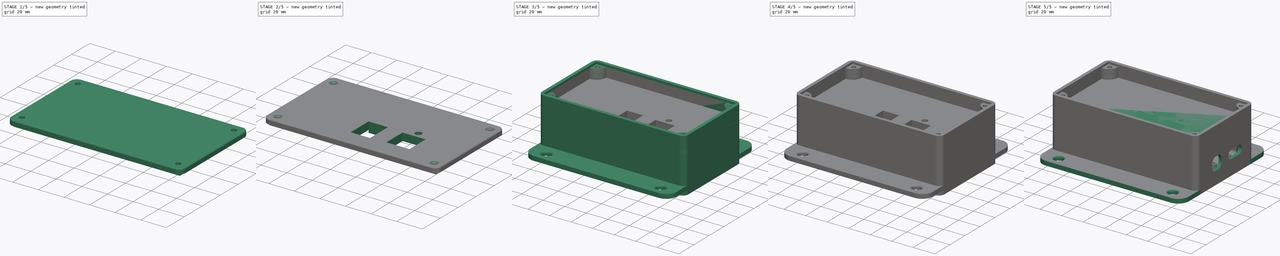
[diagram: build sequence overview — one tinted view per stage of 5, left to right]
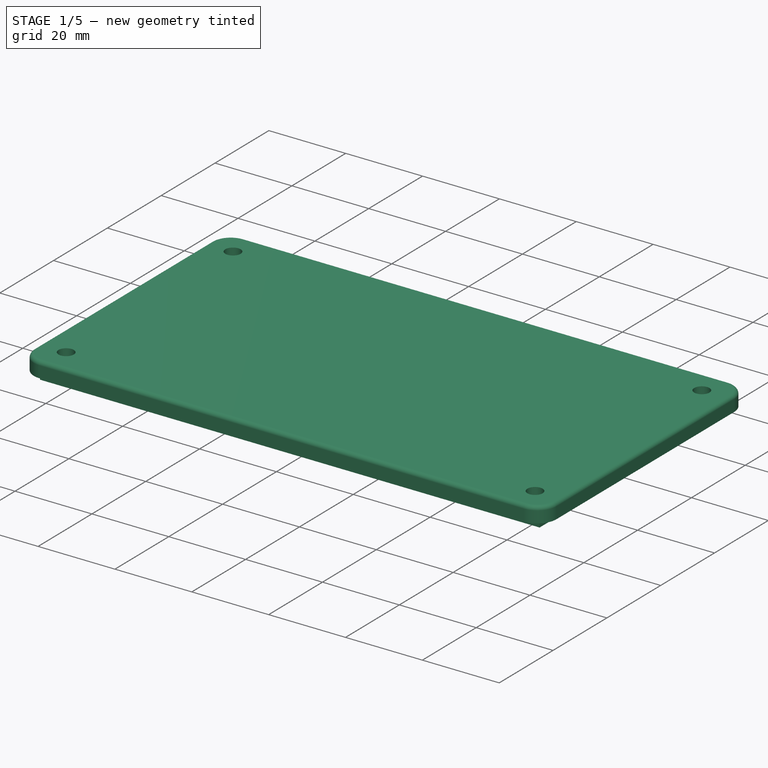
[diagram: stage 1 of 5 — iso view after this stage's code; geometry added in this stage tinted green]
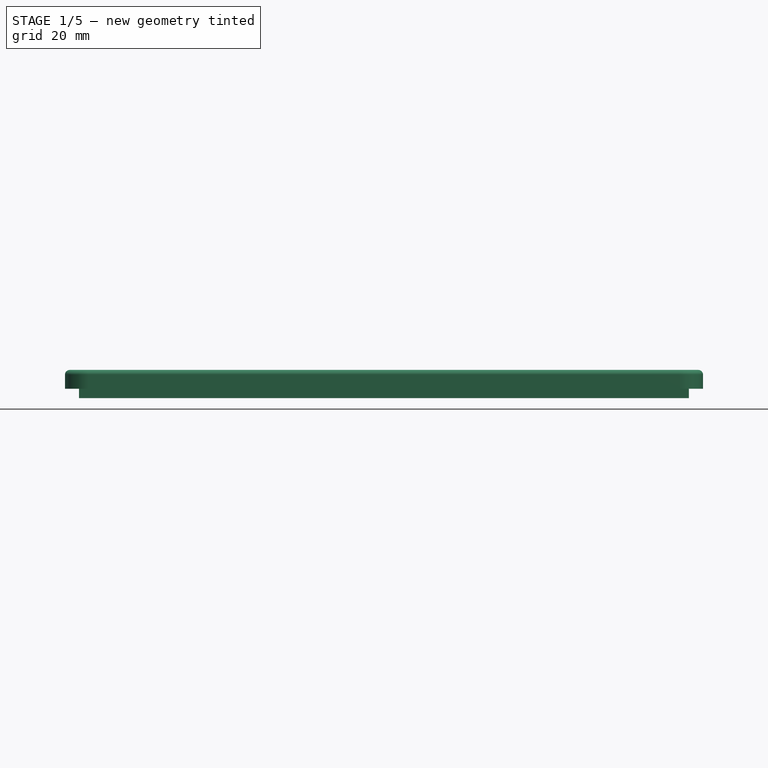
[diagram: stage 1 of 5 — front view after this stage's code; geometry added in this stage tinted green]
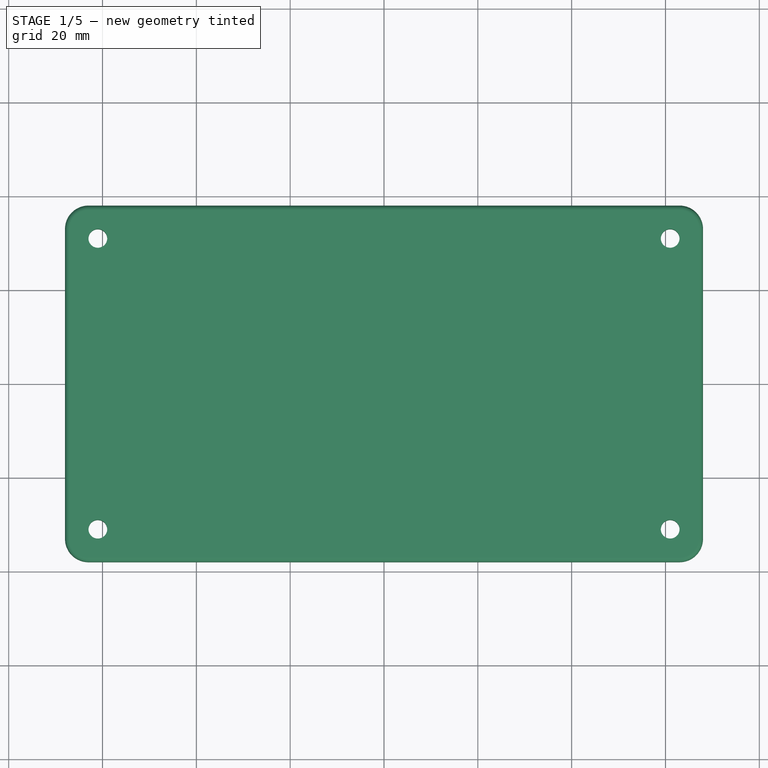
[diagram: stage 1 of 5 — top view after this stage's code; geometry added in this stage tinted green]
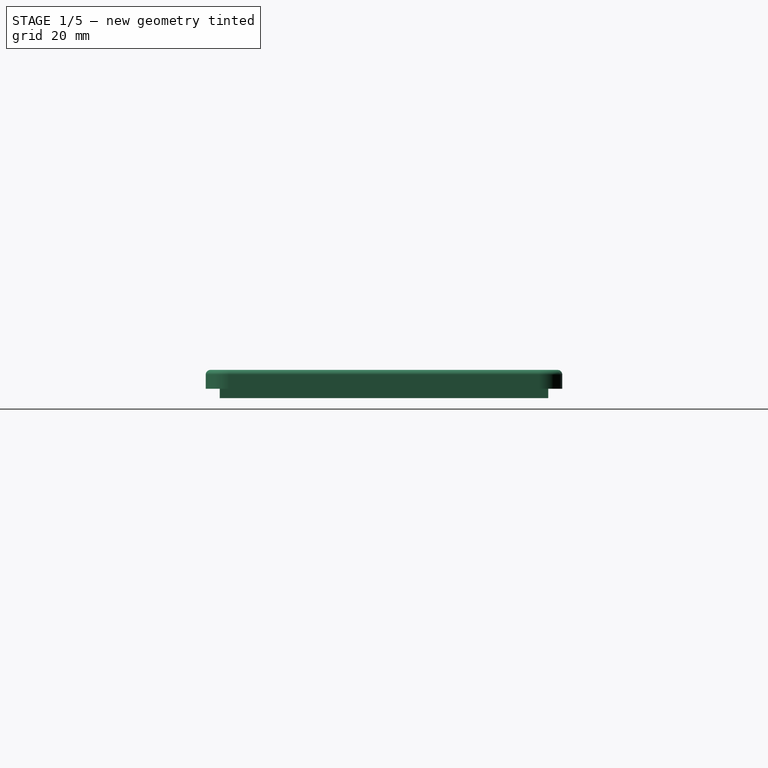
[diagram: stage 1 of 5 — right view after this stage's code; geometry added in this stage tinted green]
FCSTD DOCUMENT  (FreeCAD 0.19R24291 (Git))
Label: TempHumidBox5
License: All rights reserved
LicenseURL: http://en.wikipedia.org/wiki/All_rights_reserved
objects: Sketcher::SketchObject×17, PartDesign::Pad×10, PartDesign::Pocket×6, PartDesign::Body×6, PartDesign::Mirrored×4, PartDesign::Fillet×4, PartDesign::MultiTransform×2, Part::MultiFuse×2, PartDesign::Chamfer×1, Part::Cut×1
note: 74 computed .brp shape members not serialized (recipe doc carries the construction recipe); baked Part::Feature solids carry a one-line shape summary decoded from their .brp

FEATURE [Sketcher::SketchObject] Sketch003
  AttachmentOffset = pos=(0,0,31) rot=(0,0,1;0rad)
  FullyConstrained = true
  MapMode = 5
  Placement = pos=(0,0,31) rot=(0,0,1;0rad)
  Support = -> [XY_Plane001]
  sketch-geometry (8):
    g0: LineSegment StartX=-63 StartY=38 StartZ=0 EndX=63 EndY=38 EndZ=0
    g1: LineSegment StartX=68 StartY=33 StartZ=0 EndX=68 EndY=-33 EndZ=0
    g2: LineSegment StartX=63 StartY=-38 StartZ=0 EndX=-63 EndY=-38 EndZ=0
    g3: LineSegment StartX=-68 StartY=-33 StartZ=0 EndX=-68 EndY=33 EndZ=0
    g4: ArcOfCircle CenterX=-63 CenterY=33 CenterZ=0 NormalX=0 NormalY=0 NormalZ=1 AngleXU=0 Radius=5 StartAngle=1.5708 EndAngle=3.14159
    g5: ArcOfCircle CenterX=63 CenterY=33 CenterZ=0 NormalX=0 NormalY=0 NormalZ=1 AngleXU=0 Radius=5 StartAngle=-2.22e-13 EndAngle=1.5708
    g6: ArcOfCircle CenterX=63 CenterY=-33 CenterZ=0 NormalX=0 NormalY=0 NormalZ=1 AngleXU=0 Radius=5 StartAngle=4.71239 EndAngle=6.28319
    g7: ArcOfCircle CenterX=-63 CenterY=-33 CenterZ=0 NormalX=0 NormalY=0 NormalZ=1 AngleXU=0 Radius=5 StartAngle=3.14159 EndAngle=4.71239
  constraints (18):
    c: Horizontal(g0)
    c: Horizontal(g2)
    c: Vertical(g1)
    c: Vertical(g3)
    c: Tangent(g0,g4) = 1.5708
    c: Tangent(g3,g4) = 1.5708
    c: Tangent(g0,g5) = 1.5708
    c: Tangent(g1,g5) = 1.5708
    c: Tangent(g1,g6) = 1.5708
    c: Tangent(g2,g6) = 1.5708
    c: Tangent(g2,g7) = 1.5708
    c: Tangent(g3,g7) = 1.5708
    c: Radius(g4) = 5
    c: Equal(g5,g6)
    c: DistanceX(g3,g1) = 136
    c: DistanceY(g2,g0) = 76
    c: Symmetric(g0,g2,g-1)
    c: Symmetric(g3,g1,g-2)
FEATURE [PartDesign::Pad] Pad002
  Direction = (1,1,1)
  Length = 4
  Length2 = 100
  Profile = -> Sketch003
  Type = 0
FEATURE [Sketcher::SketchObject] Sketch004
  AttachmentOffset = pos=(0,0,31) rot=(0,0,1;0rad)
  FullyConstrained = true
  MapMode = 5
  Placement = pos=(0,0,31) rot=(0,0,1;0rad)
  Support = -> [XY_Plane001]
  sketch-geometry (4):
    g0: LineSegment StartX=-65 StartY=35 StartZ=0 EndX=65 EndY=35 EndZ=0
    g1: LineSegment StartX=65 StartY=35 StartZ=0 EndX=65 EndY=-35 EndZ=0
    g2: LineSegment StartX=65 StartY=-35 StartZ=0 EndX=-65 EndY=-35 EndZ=0
    g3: LineSegment StartX=-65 StartY=-35 StartZ=0 EndX=-65 EndY=35 EndZ=0
  constraints (10):
    c: Coincident(g0,g1)
    c: Coincident(g1,g2)
    c: Coincident(g2,g3)
    c: Coincident(g3,g0)
    c: Horizontal(g2)
    c: Vertical(g1)
    c: DistanceX(g0,g0) = 130
    c: DistanceY(g1,g1) = 70
    c: Symmetric(g0,g0,g-2)
    c: Symmetric(g0,g2,g-1)
FEATURE [PartDesign::Pad] Pad003
  BaseFeature = -> Pad002
  Direction = (1,1,1)
  Length = 2
  Length2 = 100
  Profile = -> Sketch004
  Reversed = true
  Type = 0
FEATURE [Sketcher::SketchObject] Sketch005
  FullyConstrained = true
  MapMode = 5
  Support = -> [XY_Plane001]
  sketch-geometry (1):
    g0: Circle CenterX=-61 CenterY=31 CenterZ=0 NormalX=0 NormalY=0 NormalZ=1 AngleXU=0 Radius=2
  constraints (3):
    c: Radius(g0) = 2
    c: DistanceX(g0,g-1) = 61
    c: DistanceY(g-1,g0) = 31
FEATURE [PartDesign::Pocket] Pocket001
  BaseFeature = -> Pad003
  Length = 5
  Length2 = 100
  Profile = -> Sketch005
  Reversed = true
  Type = 1
FEATURE [PartDesign::Mirrored] Mirrored002
  MirrorPlane = -> XZ_Plane001
FEATURE [PartDesign::Mirrored] Mirrored003
  MirrorPlane = -> Sketch005 [V_Axis]
FEATURE [PartDesign::MultiTransform] MultiTransform001
  BaseFeature = -> Pocket001
  Originals = -> [Pocket001]
  Transformations = -> [Mirrored002,Mirrored003]
FEATURE [PartDesign::Fillet] Fillet
  Base = -> MultiTransform001 [Edge10,Edge21,Edge4,Edge7,Edge20,Edge22,Edge24,Edge23]
  BaseFeature = -> MultiTransform001
  Radius = 1
  SupportTransform = false
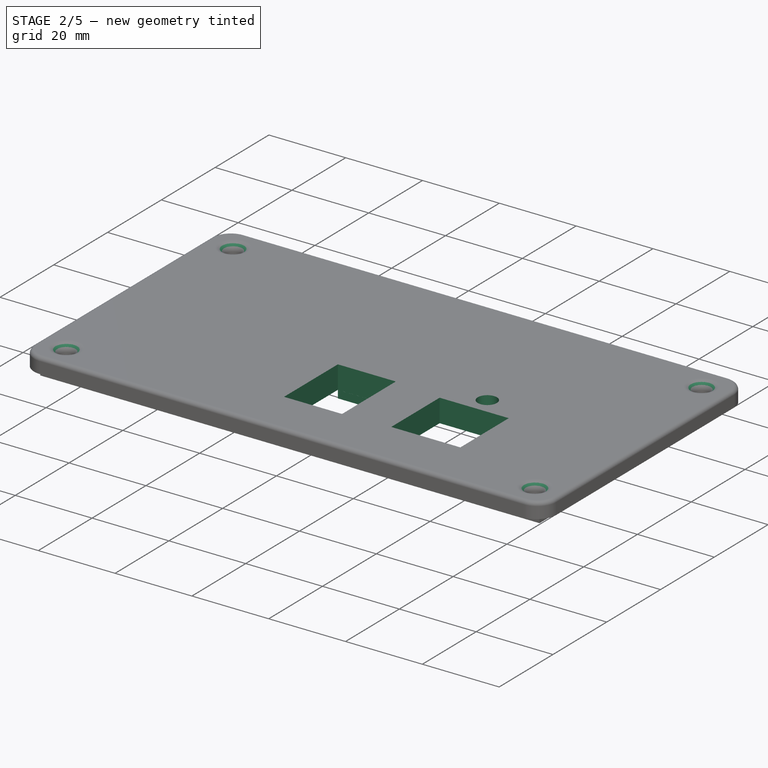
[diagram: stage 2 of 5 — iso view after this stage's code; geometry added in this stage tinted green]
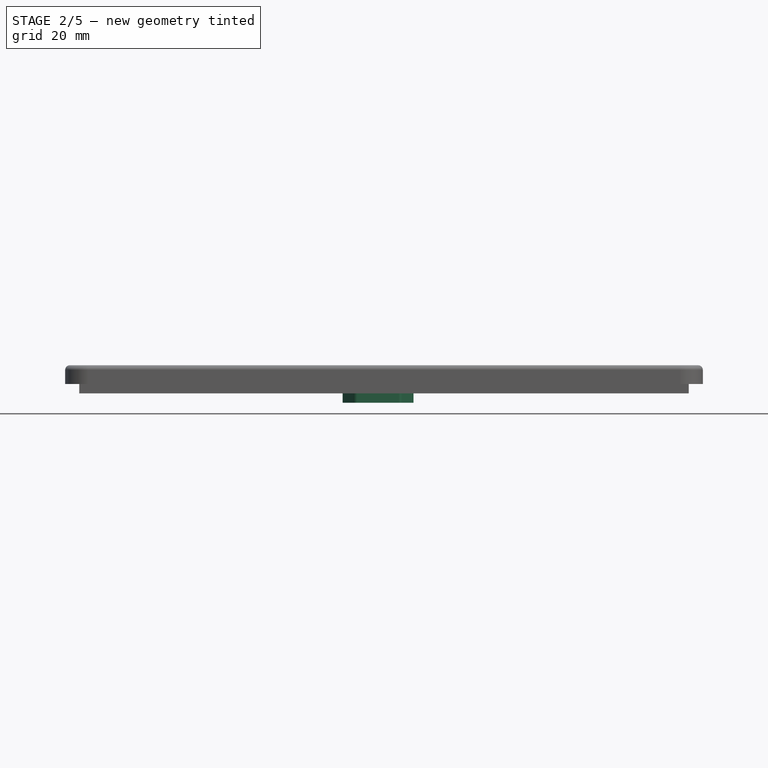
[diagram: stage 2 of 5 — front view after this stage's code; geometry added in this stage tinted green]
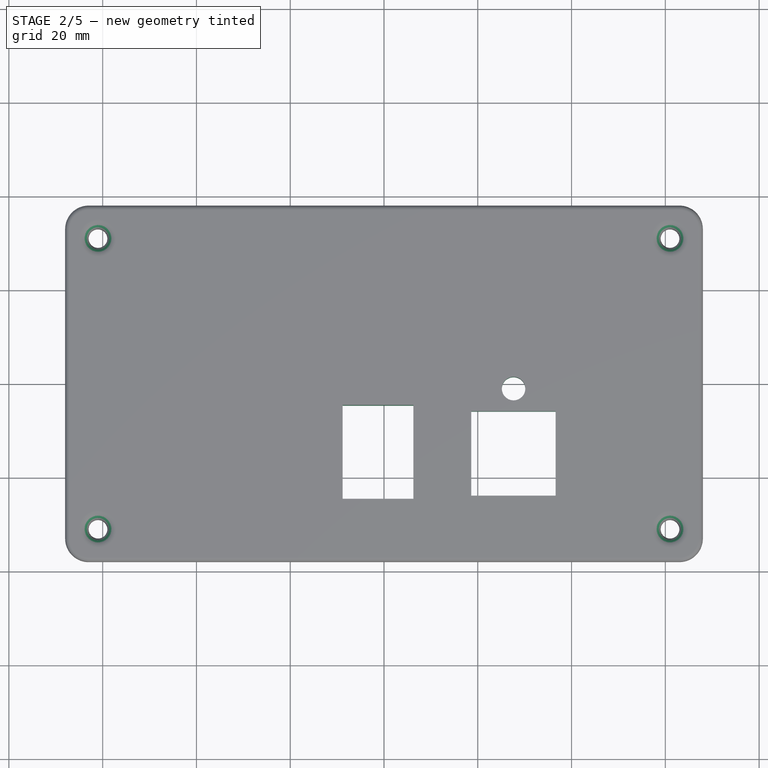
[diagram: stage 2 of 5 — top view after this stage's code; geometry added in this stage tinted green]
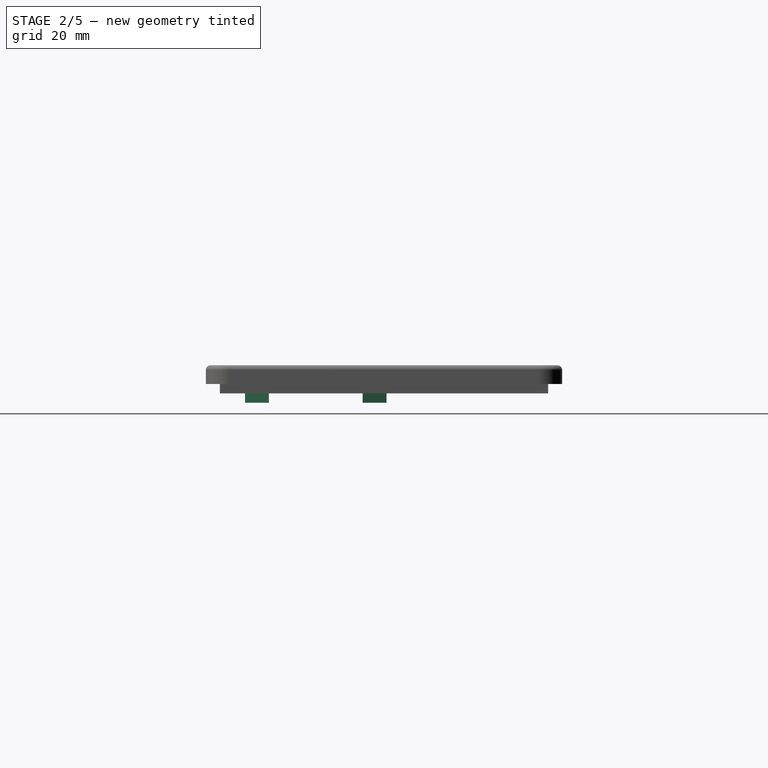
[diagram: stage 2 of 5 — right view after this stage's code; geometry added in this stage tinted green]
FEATURE [Sketcher::SketchObject] Sketch015
  FullyConstrained = false
  MapMode = 5
  Placement = pos=(0,0,35) rot=(0,0,1;0rad)
  sketch-geometry (8):
    g0: LineSegment StartX=-8.83622 StartY=-4.54776 StartZ=0 EndX=6.26378 EndY=-4.54776 EndZ=0
    g1: LineSegment StartX=6.26378 StartY=-4.54776 StartZ=0 EndX=6.26378 EndY=-24.5478 EndZ=0
    g2: LineSegment StartX=6.26378 StartY=-24.5478 StartZ=0 EndX=-8.83622 EndY=-24.5478 EndZ=0
    g3: LineSegment StartX=-8.83622 StartY=-24.5478 StartZ=0 EndX=-8.83622 EndY=-4.54776 EndZ=0
    g4: LineSegment StartX=18.6083 StartY=-5.88794 StartZ=0 EndX=36.6083 EndY=-5.88794 EndZ=0
    g5: LineSegment StartX=36.6083 StartY=-5.88794 StartZ=0 EndX=36.6083 EndY=-23.8879 EndZ=0
    g6: LineSegment StartX=36.6083 StartY=-23.8879 StartZ=0 EndX=18.6083 EndY=-23.8879 EndZ=0
    g7: LineSegment StartX=18.6083 StartY=-23.8879 StartZ=0 EndX=18.6083 EndY=-5.88794 EndZ=0
  constraints (20):
    c: Coincident(g0,g1)
    c: Coincident(g1,g2)
    c: Coincident(g2,g3)
    c: Coincident(g3,g0)
    c: Horizontal(g0)
    c: Horizontal(g2)
    c: Vertical(g1)
    c: Vertical(g3)
    c: DistanceX(g0,g0) = 15.1
    c: DistanceY(g3,g3) = 20
    c: Coincident(g4,g5)
    c: Coincident(g5,g6)
    c: Coincident(g6,g7)
    c: Coincident(g7,g4)
    c: Horizontal(g4)
    c: Horizontal(g6)
    c: Vertical(g5)
    c: Vertical(g7)
    c: DistanceY(g5,g5) = 18
    c: DistanceX(g4,g4) = 18
FEATURE [PartDesign::Pocket] Pocket003
  BaseFeature = -> Fillet
  Length = 5
  Length2 = 100
  Profile = -> Sketch015
  Type = 1
FEATURE [PartDesign::Pad] Pad009
  BaseFeature = -> Pocket003
  Direction = (1,1,1)
  Length = 2
  Length2 = 100
  Profile = -> Sketch016
  Type = 0
FEATURE [Sketcher::SketchObject] Sketch017
  ExternalGeometry = -> [Pad009]
  FullyConstrained = true
  MapMode = 5
  Placement = pos=(0,0,29) rot=(1,0,0;3.14159rad)
  sketch-geometry (1):
    g0: Circle CenterX=-1.27724 CenterY=26.5429 CenterZ=0 NormalX=0 NormalY=0 NormalZ=1 AngleXU=0 Radius=1.5
  constraints (2):
    c: Coincident(g0,g-3)
    c: Diameter(g0) = 3
FEATURE [PartDesign::Pocket] Pocket004
  BaseFeature = -> Pad009
  Length = 3
  Length2 = 100
  Profile = -> Sketch017
  Type = 0
FEATURE [PartDesign::Fillet] Fillet002
  Base = -> Pocket004 [Edge40,Edge45,Edge35,Edge34]
  BaseFeature = -> Pocket004
  Radius = 2
  SupportTransform = false
FEATURE [Sketcher::SketchObject] Sketch018
  FullyConstrained = false
  MapMode = 5
  Placement = pos=(0,0,35) rot=(0,0,1;0rad)
  sketch-geometry (1):
    g0: Circle CenterX=27.6371 CenterY=-1.052 CenterZ=0 NormalX=0 NormalY=0 NormalZ=1 AngleXU=0 Radius=2.5
  constraints (1):
    c: Diameter(g0) = 5
FEATURE [PartDesign::Pocket] Pocket005
  BaseFeature = -> Fillet002
  Length = 5
  Length2 = 100
  Profile = -> Sketch018
  Type = 1
FEATURE [PartDesign::Body] Body001  label="top"
  Group = -> [Sketch003,Pad002,Sketch004,Pad003,Sketch005,Pocket001,MultiTransform001,Mirrored002,Mirrored003,Chamfer,Fillet,Sketch015,Pocket003,Sketch016,Pad009,Sketch017,Pocket004,Fillet002,Sketch018,Pocket005]
  Origin = -> Origin001
  Placement = pos=(0,0,15) rot=(0,0,1;0rad)
  Tip = -> Pocket005
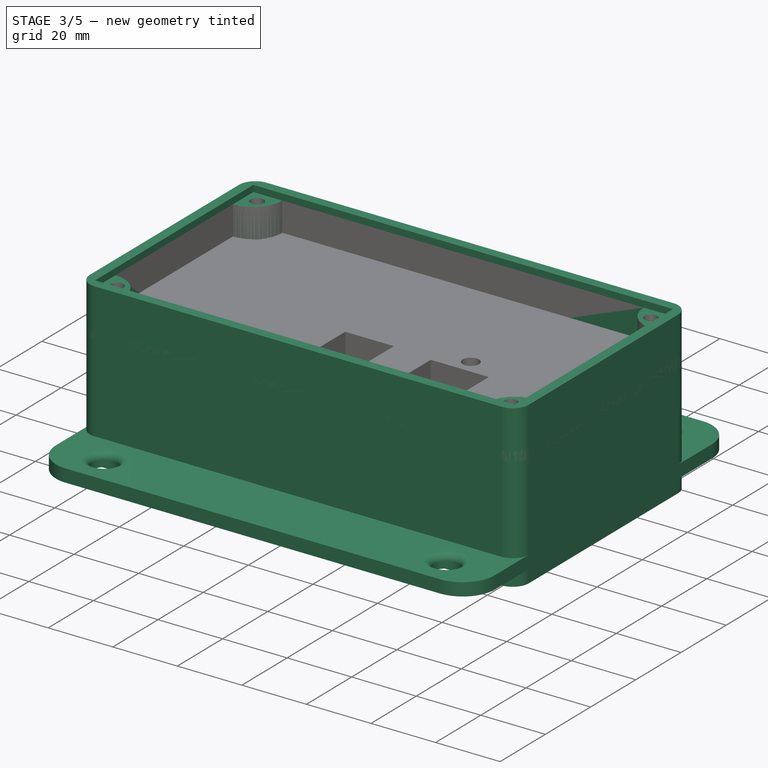
[diagram: stage 3 of 5 — iso view after this stage's code; geometry added in this stage tinted green]
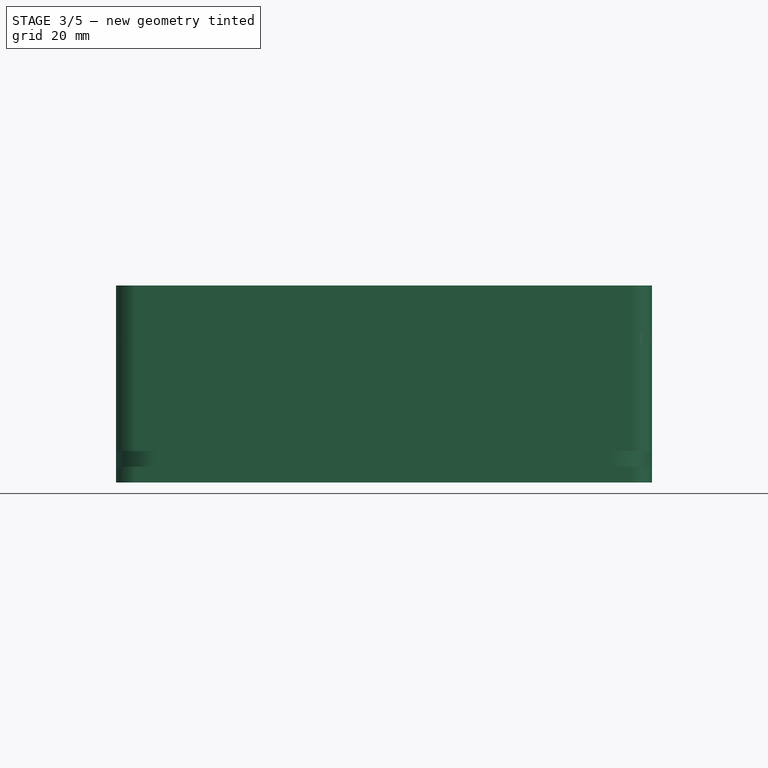
[diagram: stage 3 of 5 — front view after this stage's code; geometry added in this stage tinted green]
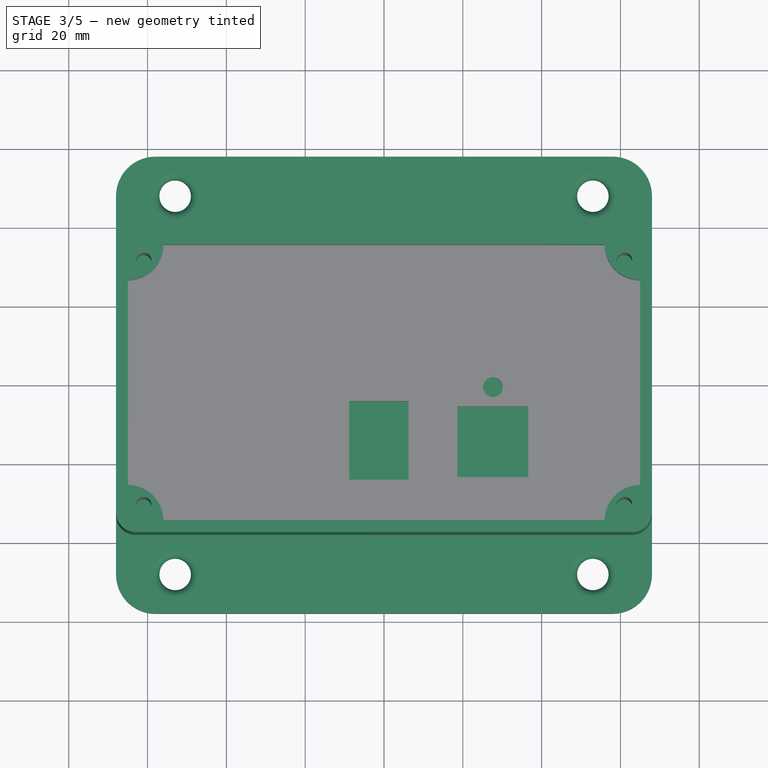
[diagram: stage 3 of 5 — top view after this stage's code; geometry added in this stage tinted green]
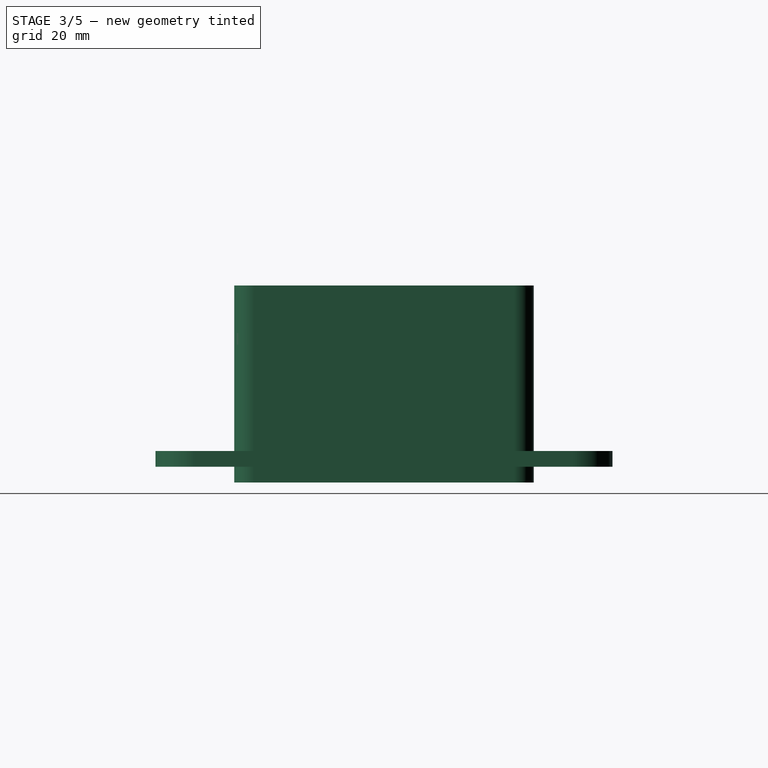
[diagram: stage 3 of 5 — right view after this stage's code; geometry added in this stage tinted green]
FEATURE [Sketcher::SketchObject] Sketch
  AttachmentOffset = pos=(0,0,-4) rot=(0,0,1;0rad)
  FullyConstrained = true
  MapMode = 5
  Placement = pos=(0,0,-4) rot=(0,0,1;0rad)
  Support = -> [XY_Plane]
  sketch-geometry (8):
    g0: LineSegment StartX=-63 StartY=38 StartZ=0 EndX=63 EndY=38 EndZ=0
    g1: LineSegment StartX=68 StartY=33 StartZ=0 EndX=68 EndY=-33 EndZ=0
    g2: LineSegment StartX=63 StartY=-38 StartZ=0 EndX=-63 EndY=-38 EndZ=0
    g3: LineSegment StartX=-68 StartY=-33 StartZ=0 EndX=-68 EndY=33 EndZ=0
    g4: ArcOfCircle CenterX=-63 CenterY=33 CenterZ=0 NormalX=0 NormalY=0 NormalZ=1 AngleXU=0 Radius=5 StartAngle=1.5708 EndAngle=3.14159
    g5: ArcOfCircle CenterX=63 CenterY=33 CenterZ=0 NormalX=0 NormalY=0 NormalZ=1 AngleXU=0 Radius=5 StartAngle=2.553e-13 EndAngle=1.5708
    g6: ArcOfCircle CenterX=63 CenterY=-33 CenterZ=0 NormalX=0 NormalY=0 NormalZ=1 AngleXU=0 Radius=5 StartAngle=4.71239 EndAngle=6.28319
    g7: ArcOfCircle CenterX=-63 CenterY=-33 CenterZ=0 NormalX=0 NormalY=0 NormalZ=1 AngleXU=0 Radius=5 StartAngle=3.14159 EndAngle=4.71239
  constraints (18):
    c: Horizontal(g2)
    c: Vertical(g1)
    c: Tangent(g0,g4) = 1.5708
    c: Tangent(g3,g4) = 1.5708
    c: Tangent(g0,g5) = 1.5708
    c: Tangent(g1,g5) = 1.5708
    c: Tangent(g1,g6) = 1.5708
    c: Tangent(g2,g6) = 1.5708
    c: Tangent(g2,g7) = 1.5708
    c: Tangent(g3,g7) = 1.5708
    c: Radius(g4) = 5
    c: Equal(g4,g5)
    c: Equal(g5,g6)
    c: Equal(g6,g7)
    c: DistanceX(g3,g1) = 136
    c: DistanceY(g2,g0) = 76
    c: Symmetric(g0,g0,g-2)
    c: Symmetric(g3,g3,g-1)
FEATURE [PartDesign::Pad] Pad
  Direction = (1,1,1)
  Length = 50
  Length2 = 100
  Profile = -> Sketch
  Type = 0
FEATURE [Sketcher::SketchObject] Sketch001
  FullyConstrained = true
  MapMode = 5
  Support = -> [XY_Plane]
  sketch-geometry (4):
    g0: LineSegment StartX=-65 StartY=35 StartZ=0 EndX=65 EndY=35 EndZ=0
    g1: LineSegment StartX=65 StartY=35 StartZ=0 EndX=65 EndY=-35 EndZ=0
    g2: LineSegment StartX=65 StartY=-35 StartZ=0 EndX=-65 EndY=-35 EndZ=0
    g3: LineSegment StartX=-65 StartY=-35 StartZ=0 EndX=-65 EndY=35 EndZ=0
  constraints (10):
    c: Coincident(g0,g1)
    c: Coincident(g1,g2)
    c: Coincident(g2,g3)
    c: Coincident(g3,g0)
    c: Horizontal(g2)
    c: Vertical(g1)
    c: DistanceY(g1,g1) = 70
    c: DistanceX(g0,g0) = 130
    c: Symmetric(g0,g0,g-2)
    c: Symmetric(g0,g2,g-1)
FEATURE [PartDesign::Pocket] Pocket
  BaseFeature = -> Pad
  Length = 5
  Length2 = 100
  Profile = -> Sketch001
  Reversed = true
  Type = 1
FEATURE [Sketcher::SketchObject] Sketch002
  FullyConstrained = true
  MapMode = 5
  Support = -> [XY_Plane]
  sketch-geometry (4):
    g0: LineSegment StartX=-65 StartY=35 StartZ=0 EndX=-56 EndY=35 EndZ=0
    g1: LineSegment StartX=-65 StartY=35 StartZ=0 EndX=-65 EndY=26 EndZ=0
    g2: ArcOfCircle CenterX=-65 CenterY=35 CenterZ=0 NormalX=0 NormalY=0 NormalZ=1 AngleXU=0 Radius=9 StartAngle=4.71239 EndAngle=6.28319
    g3: Circle CenterX=-61 CenterY=31 CenterZ=0 NormalX=0 NormalY=0 NormalZ=1 AngleXU=0 Radius=2
  constraints (12):
    c: Horizontal(g0)
    c: Coincident(g1,g0)
    c: Vertical(g1)
    c: Coincident(g2,g0)
    c: Coincident(g2,g0)
    c: Coincident(g2,g1)
    c: Radius(g3) = 2
    c: DistanceX(g0,g3) = 4
    c: DistanceY(g3,g0) = 4
    c: Radius(g2) = 9
    c: DistanceX(g3,g-1) = 61
    c: DistanceY(g-1,g3) = 31
FEATURE [PartDesign::Pad] Pad001
  BaseFeature = -> Pocket
  Direction = (1,1,1)
  Length = 44
  Length2 = 100
  Profile = -> Sketch002
  Type = 0
FEATURE [PartDesign::Mirrored] Mirrored
  MirrorPlane = -> Sketch002 [V_Axis]
FEATURE [PartDesign::Mirrored] Mirrored001
  MirrorPlane = -> Sketch002 [H_Axis]
FEATURE [PartDesign::MultiTransform] MultiTransform
  BaseFeature = -> Pad001
  Originals = -> [Pad001]
  Transformations = -> [Mirrored,Mirrored001]
FEATURE [Sketcher::SketchObject] Sketch007
  FullyConstrained = true
  MapMode = 5
  Support = -> [XY_Plane]
  sketch-geometry (8):
    g0: LineSegment StartX=-68 StartY=-33 StartZ=0 EndX=68 EndY=-33 EndZ=0
    g1: LineSegment StartX=68 StartY=-33 StartZ=0 EndX=68 EndY=-43 EndZ=0
    g2: LineSegment StartX=58 StartY=-53 StartZ=0 EndX=-58 EndY=-53 EndZ=0
    g3: LineSegment StartX=-68 StartY=-43 StartZ=0 EndX=-68 EndY=-33 EndZ=0
    g4: ArcOfCircle CenterX=-58 CenterY=-43 CenterZ=0 NormalX=0 NormalY=0 NormalZ=1 AngleXU=0 Radius=10 StartAngle=3.14159 EndAngle=4.71239
    g5: ArcOfCircle CenterX=58 CenterY=-43 CenterZ=0 NormalX=0 NormalY=0 NormalZ=1 AngleXU=0 Radius=10 StartAngle=4.71239 EndAngle=6.28319
    g6: Circle CenterX=-53 CenterY=-45 CenterZ=0 NormalX=0 NormalY=0 NormalZ=1 AngleXU=0 Radius=4
    g7: Circle CenterX=53 CenterY=-45 CenterZ=0 NormalX=0 NormalY=0 NormalZ=1 AngleXU=0 Radius=4
  constraints (20):
    c: Coincident(g0,g1)
    c: Coincident(g3,g0)
    c: Horizontal(g2)
    c: Vertical(g1)
    c: Vertical(g3)
    c: Tangent(g2,g4) = 1.5708
    c: Tangent(g3,g4) = 1.5708
    c: Tangent(g1,g5) = 1.5708
    c: Tangent(g2,g5) = 1.5708
    c: Radius(g5) = 10
    c: Equal(g5,g4)
    c: DistanceX(g0,g0) = 136
    c: DistanceY(g2,g0) = 20
    c: Radius(g6) = 4
    c: Equal(g6,g7)
    c: DistanceY(g2,g6) = 8
    c: DistanceX(g3,g6) = 15
    c: Symmetric(g6,g7,g-2)
    c: Symmetric(g0,g0,g-2)
    c: DistanceY(g0,g-1) = 33
FEATURE [Sketcher::SketchObject] Sketch008
  FullyConstrained = true
  MapMode = 5
  Support = -> [XY_Plane002]
  sketch-geometry (12):
    g0: LineSegment StartX=-58 StartY=58 StartZ=0 EndX=58 EndY=58 EndZ=0
    g1: LineSegment StartX=68 StartY=48 StartZ=0 EndX=68 EndY=-48 EndZ=0
    g2: LineSegment StartX=58 StartY=-58 StartZ=0 EndX=-58 EndY=-58 EndZ=0
    g3: LineSegment StartX=-68 StartY=-48 StartZ=0 EndX=-68 EndY=48 EndZ=0
    g4: ArcOfCircle CenterX=-58 CenterY=48 CenterZ=0 NormalX=0 NormalY=0 NormalZ=1 AngleXU=0 Radius=10 StartAngle=1.5708 EndAngle=3.14159
    g5: ArcOfCircle CenterX=58 CenterY=48 CenterZ=0 NormalX=0 NormalY=0 NormalZ=1 AngleXU=0 Radius=10 StartAngle=0 EndAngle=1.5708
    g6: ArcOfCircle CenterX=-58 CenterY=-48 CenterZ=0 NormalX=0 NormalY=0 NormalZ=1 AngleXU=0 Radius=10 StartAngle=3.14159 EndAngle=4.71239
    g7: ArcOfCircle CenterX=58 CenterY=-48 CenterZ=0 NormalX=0 NormalY=0 NormalZ=1 AngleXU=0 Radius=10 StartAngle=4.71239 EndAngle=6.28319
    g8: Circle CenterX=-53 CenterY=-48 CenterZ=0 NormalX=0 NormalY=0 NormalZ=1 AngleXU=0 Radius=4
    g9: Circle CenterX=53 CenterY=-48 CenterZ=0 NormalX=0 NormalY=0 NormalZ=1 AngleXU=0 Radius=4
    g10: Circle CenterX=53 CenterY=48 CenterZ=0 NormalX=0 NormalY=0 NormalZ=1 AngleXU=0 Radius=4
    g11: Circle CenterX=-53 CenterY=48 CenterZ=0 NormalX=0 NormalY=0 NormalZ=1 AngleXU=0 Radius=4
  constraints (27):
    c: Horizontal(g0)
    c: Horizontal(g2)
    c: Vertical(g1)
    c: Vertical(g3)
    c: Tangent(g0,g4) = 1.5708
    c: Tangent(g3,g4) = 1.5708
    c: Tangent(g0,g5) = 1.5708
    c: Tangent(g1,g5) = 1.5708
    c: Tangent(g2,g6) = 1.5708
    c: Tangent(g3,g6) = 1.5708
    c: Tangent(g1,g7) = 1.5708
    c: Tangent(g2,g7) = 1.5708
    c: DistanceY(g2,g0) = 116
    c: Symmetric(g0,g2,g-1)
    c: Symmetric(g3,g1,g-2)
    c: Radius(g4) = 10
    c: DistanceX(g3,g1) = 136
    c: Equal(g6,g7)
    c: Radius(g8) = 4
    c: Equal(g8,g9)
    c: Equal(g9,g10)
    c: Equal(g10,g11)
    c: DistanceX(g3,g8) = 15
    c: DistanceY(g2,g8) = 10
    c: Symmetric(g8,g9,g-2)
    c: Symmetric(g11,g8,g-1)
    c: Symmetric(g10,g9,g-1)
FEATURE [PartDesign::Pad] Pad004
  Direction = (1,1,1)
  Length = 4
  Length2 = 100
  Profile = -> Sketch008
  Type = 0
FEATURE [PartDesign::Fillet] Fillet003
  Base = -> Pad004 [Edge33,Edge30,Edge27,Edge36]
  BaseFeature = -> Pad004
  Radius = 2
  SupportTransform = false
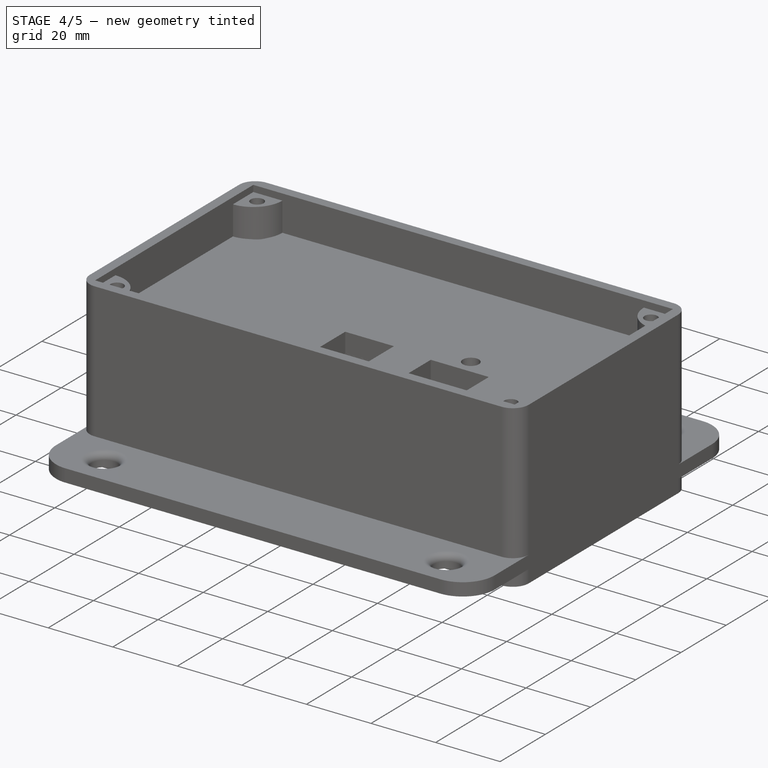
[diagram: stage 4 of 5 — iso view after this stage's code; geometry added in this stage tinted green]
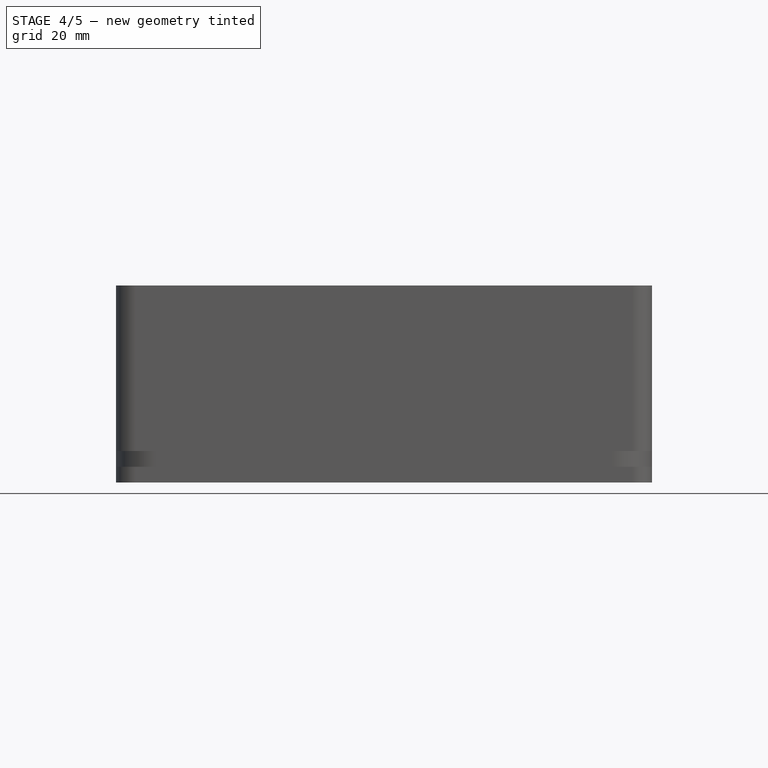
[diagram: stage 4 of 5 — front view after this stage's code; geometry added in this stage tinted green]
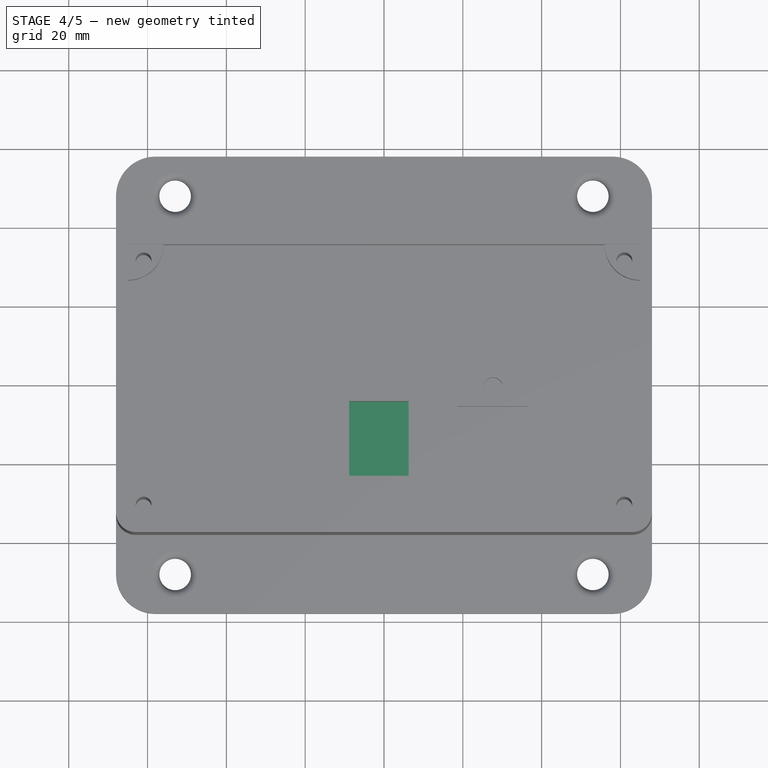
[diagram: stage 4 of 5 — top view after this stage's code; geometry added in this stage tinted green]
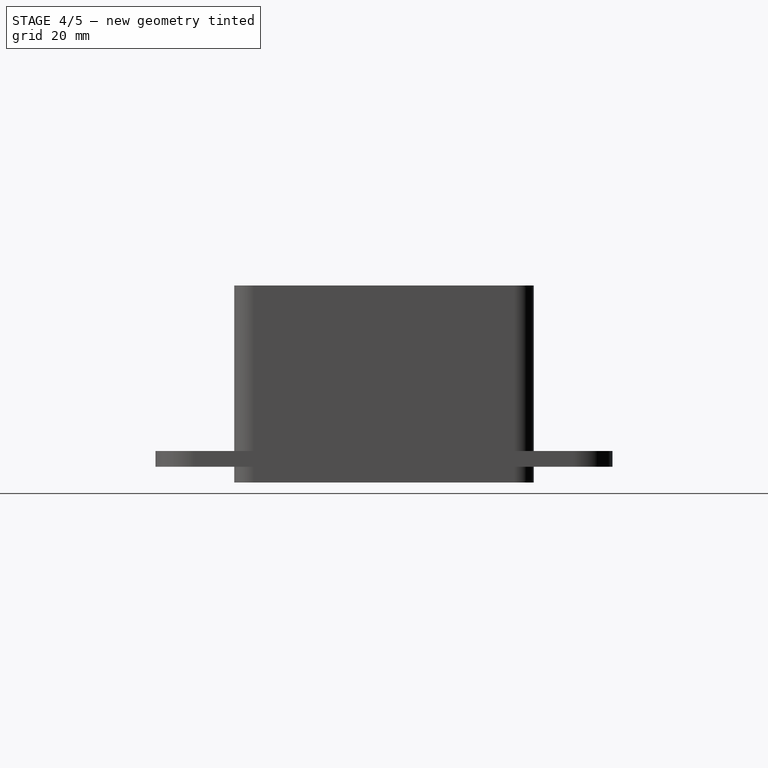
[diagram: stage 4 of 5 — right view after this stage's code; geometry added in this stage tinted green]
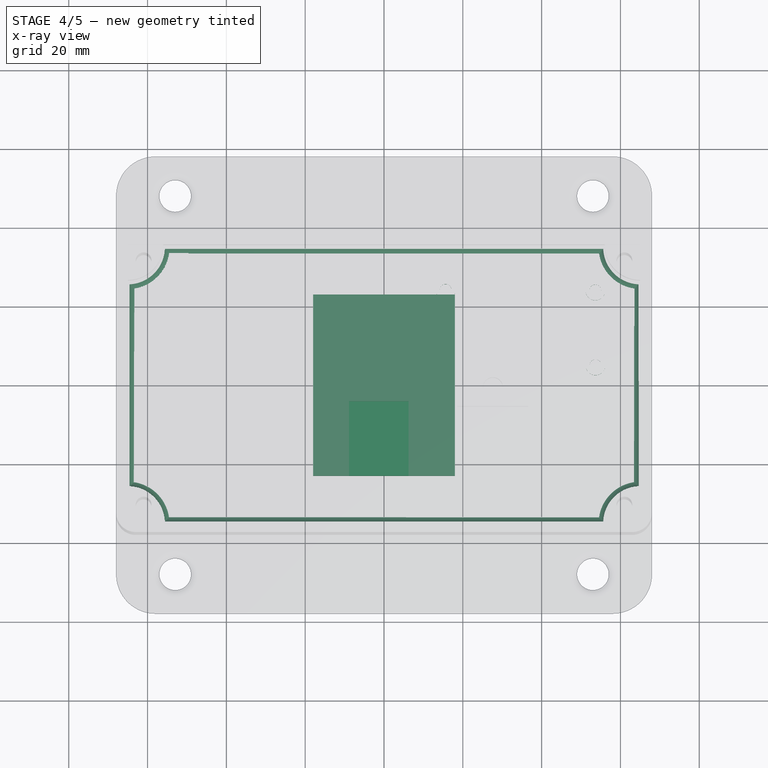
[diagram: stage 4 of 5 — x-ray composite at the top view; earlier geometry ghosted, this stage's added geometry solid]
FEATURE [PartDesign::Body] Body003  label="jack-hole"
  Group = -> [Sketch009,Pad005]
  Origin = -> Origin003
  Placement = pos=(61,-8,14) rot=(0,0,1;0rad)
  Tip = -> Pad005
FEATURE [Sketcher::SketchObject] Sketch010
  FullyConstrained = true
  MapMode = 5
  Placement = pos=(0,0,0) rot=(0.57735,0.57735,0.57735;2.0944rad)
  Support = -> [YZ_Plane004]
  sketch-geometry (4):
    g0: ArcOfCircle CenterX=-5 CenterY=0 CenterZ=0 NormalX=0 NormalY=0 NormalZ=1 AngleXU=0 Radius=4 StartAngle=1.5708 EndAngle=4.71239
    g1: ArcOfCircle CenterX=5 CenterY=7.36e-14 CenterZ=0 NormalX=0 NormalY=0 NormalZ=1 AngleXU=0 Radius=4 StartAngle=4.71239 EndAngle=7.85398
    g2: LineSegment StartX=-5 StartY=-4 StartZ=0 EndX=5 EndY=-4 EndZ=0
    g3: LineSegment StartX=-5 StartY=4 StartZ=0 EndX=5 EndY=4 EndZ=0
  constraints (8):
    c: Tangent(g0,g3) = 1.5708
    c: Tangent(g0,g2) = -1.5708
    c: Tangent(g2,g1) = -1.5708
    c: Tangent(g3,g1) = 1.5708
    c: Radius(g0) = 4
    c: DistanceX(g3,g3) = 10
    c: Symmetric(g0,g1,g-2)
    c: Symmetric(g0,g0,g-1)
FEATURE [PartDesign::Pad] Pad006
  Direction = (1,1,1)
  Length = 10
  Length2 = 100
  Placement = pos=(0,0,0) rot=(0.57735,0.57735,0.57735;2.0944rad)
  Profile = -> Sketch010
  Type = 0
FEATURE [PartDesign::Body] Body004  label="relay-hole"
  Group = -> [Sketch010,Pad006]
  Origin = -> Origin004
  Placement = pos=(61,13,14) rot=(0,0,1;0rad)
  Tip = -> Pad006
FEATURE [Sketcher::SketchObject] Sketch011
  FullyConstrained = true
  MapMode = 5
  Support = -> [XY_Plane005]
  sketch-geometry (4):
    g0: LineSegment StartX=-18 StartY=23 StartZ=0 EndX=18 EndY=23 EndZ=0
    g1: LineSegment StartX=18 StartY=23 StartZ=0 EndX=18 EndY=-23 EndZ=0
    g2: LineSegment StartX=18 StartY=-23 StartZ=0 EndX=-18 EndY=-23 EndZ=0
    g3: LineSegment StartX=-18 StartY=-23 StartZ=0 EndX=-18 EndY=23 EndZ=0
  constraints (10):
    c: Coincident(g0,g1)
    c: Coincident(g1,g2)
    c: Coincident(g2,g3)
    c: Coincident(g3,g0)
    c: Horizontal(g2)
    c: Vertical(g1)
    c: DistanceX(g0,g0) = 36
    c: DistanceY(g1,g1) = 46
    c: Symmetric(g0,g0,g-2)
    c: Symmetric(g2,g0,g-1)
FEATURE [PartDesign::Pad] Pad007
  Direction = (1,1,1)
  Length = 5
  Length2 = 100
  Profile = -> Sketch011
  Type = 0
FEATURE [Sketcher::SketchObject] Sketch013
  FullyConstrained = false
  MapMode = 5
  sketch-geometry (4):
    g0: Circle CenterX=15.6181 CenterY=24.1357 CenterZ=0 NormalX=0 NormalY=0 NormalZ=1 AngleXU=0 Radius=2.5
    g1: Circle CenterX=53.6181 CenterY=24.0129 CenterZ=0 NormalX=0 NormalY=0 NormalZ=1 AngleXU=0 Radius=2.5
    g2: Circle CenterX=53.6624 CenterY=5.01293 CenterZ=0 NormalX=0 NormalY=0 NormalZ=1 AngleXU=0 Radius=2.5
    g3: Circle CenterX=15.6624 CenterY=5.13567 CenterZ=0 NormalX=0 NormalY=0 NormalZ=1 AngleXU=0 Radius=2.5
  constraints (8):
    c: Diameter(g0) = 5
    c: Equal(g0,g1)
    c: Equal(g1,g2)
    c: Equal(g2,g3)
    c: DistanceX(g0,g1) = 38
    c: DistanceY(g3,g0) = 19
    c: DistanceY(g2,g1) = 19
    c: DistanceX(g3,g2) = 38
FEATURE [PartDesign::Pad] Pad008
  BaseFeature = -> MultiTransform
  Direction = (1,1,1)
  Length = 4
  Length2 = 100
  Profile = -> Sketch013
  Type = 0
FEATURE [Sketcher::SketchObject] Sketch014
  ExternalGeometry = -> [Pad008]
  FullyConstrained = true
  MapMode = 5
  Placement = pos=(0,0,4) rot=(0,0,1;0rad)
  sketch-geometry (4):
    g0: Circle CenterX=15.6181 CenterY=24.1357 CenterZ=0 NormalX=0 NormalY=0 NormalZ=1 AngleXU=0 Radius=1.5
    g1: Circle CenterX=53.6181 CenterY=24.0129 CenterZ=0 NormalX=0 NormalY=0 NormalZ=1 AngleXU=0 Radius=1.5
    g2: Circle CenterX=53.6624 CenterY=5.01293 CenterZ=0 NormalX=0 NormalY=0 NormalZ=1 AngleXU=0 Radius=1.5
    g3: Circle CenterX=15.6624 CenterY=5.13567 CenterZ=0 NormalX=0 NormalY=0 NormalZ=1 AngleXU=0 Radius=1.5
  constraints (8):
    c: Coincident(g0,g-3)
    c: Coincident(g1,g-4)
    c: Coincident(g2,g-5)
    c: Coincident(g3,g-6)
    c: Diameter(g0) = 3
    c: Equal(g0,g1)
    c: Equal(g1,g2)
    c: Equal(g2,g3)
FEATURE [PartDesign::Pocket] Pocket002
  BaseFeature = -> Pad008
  Length = 4
  Length2 = 100
  Profile = -> Sketch014
  Type = 0
FEATURE [Sketcher::SketchObject] Sketch016
  FullyConstrained = false
  MapMode = 5
  Placement = pos=(0,0,29) rot=(1,0,0;3.14159rad)
  sketch-geometry (11):
    g0: LineSegment StartX=-8.81666 StartY=4.56198 StartZ=0 EndX=6.28334 EndY=4.56198 EndZ=0
    g1: LineSegment StartX=6.28334 StartY=4.56198 StartZ=0 EndX=6.28334 EndY=-0.538023 EndZ=0
    g2: LineSegment StartX=6.28334 StartY=-0.538023 StartZ=0 EndX=-8.81666 EndY=-0.538023 EndZ=0
    g3: LineSegment StartX=-8.81666 StartY=-0.538023 StartZ=0 EndX=-8.81666 EndY=4.56198 EndZ=0
    g4: LineSegment StartX=-8.82724 StartY=24.5429 StartZ=0 EndX=6.27276 EndY=24.5429 EndZ=0
    g5: LineSegment StartX=6.27276 StartY=24.5429 StartZ=0 EndX=3.84388 EndY=29.2011 EndZ=0
    g6: LineSegment StartX=3.1152 StartY=29.6429 StartZ=0 EndX=-5.72601 EndY=29.6429 EndZ=0
    g7: LineSegment StartX=-6.59154 StartY=29.1033 StartZ=0 EndX=-8.82724 EndY=24.5429 EndZ=0
    g8: ArcOfCircle CenterX=3.1152 CenterY=28.8211 CenterZ=0 NormalX=0 NormalY=0 NormalZ=1 AngleXU=0 Radius=0.821797 StartAngle=0.48064 EndAngle=1.5708
    g9: ArcOfCircle CenterX=-5.72601 CenterY=28.679 CenterZ=0 NormalX=0 NormalY=0 NormalZ=1 AngleXU=0 Radius=0.963943 StartAngle=1.5708 EndAngle=2.68578
    g10: Circle CenterX=-1.27724 CenterY=26.5429 CenterZ=0 NormalX=0 NormalY=0 NormalZ=1 AngleXU=0 Radius=1.5
  constraints (23):
    c: Coincident(g0,g1)
    c: Coincident(g1,g2)
    c: Coincident(g2,g3)
    c: Coincident(g3,g0)
    c: Horizontal(g0)
    c: Horizontal(g2)
    c: Vertical(g1)
    c: Vertical(g3)
    c: DistanceY(g3,g3) = 5.1
    c: DistanceX(g0,g0) = 15.1
    c: Horizontal(g4)
    c: Coincident(g5,g4)
    c: Horizontal(g6)
    c: Coincident(g7,g4)
    c: DistanceX(g4,g4) = 15.1
    c: Tangent(g5,g8) = -1.5708
    c: Tangent(g6,g8) = -1.5708
    c: Tangent(g6,g9) = -1.5708
    c: Tangent(g7,g9) = -1.5708
    c: DistanceY(g4,g6) = 5.1
    c: Diameter(g10) = 3
    c: DistanceX(g4,g10) = 7.55
    c: DistanceY(g4,g10) = 2
FEATURE [PartDesign::Fillet] Fillet001
  Base = -> Pocket002 [Edge54,Edge29,Edge56,Edge36,Edge55,Edge42,Edge53,Edge48]
  BaseFeature = -> Pocket002
  Radius = 3
  SupportTransform = false
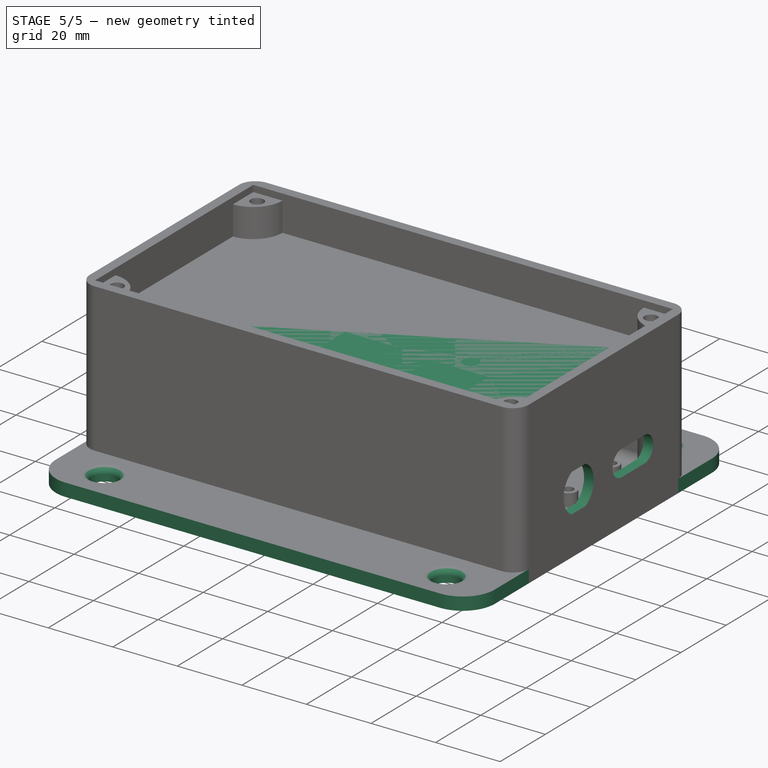
[diagram: stage 5 of 5 — iso view after this stage's code; geometry added in this stage tinted green]
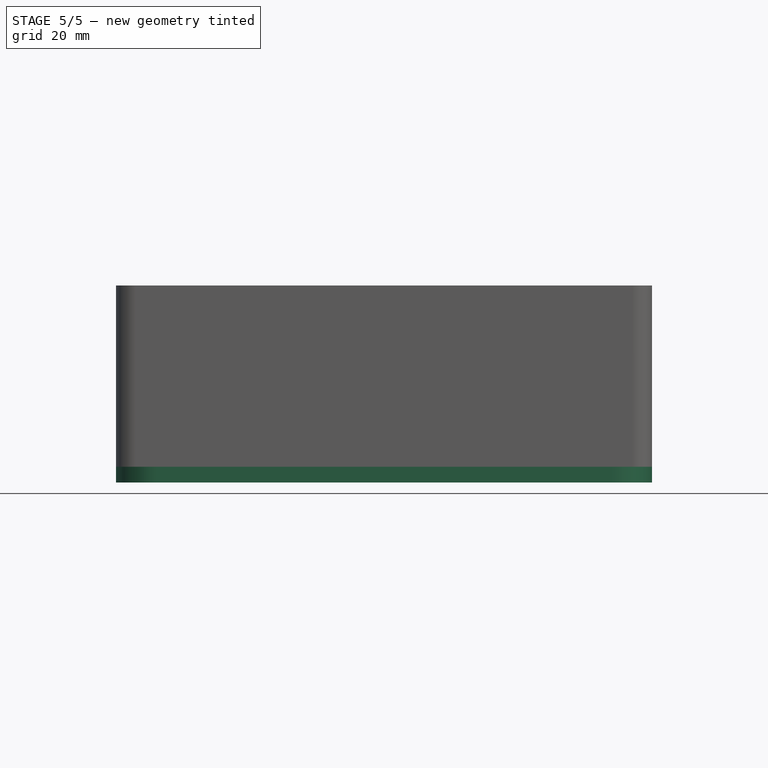
[diagram: stage 5 of 5 — front view after this stage's code; geometry added in this stage tinted green]
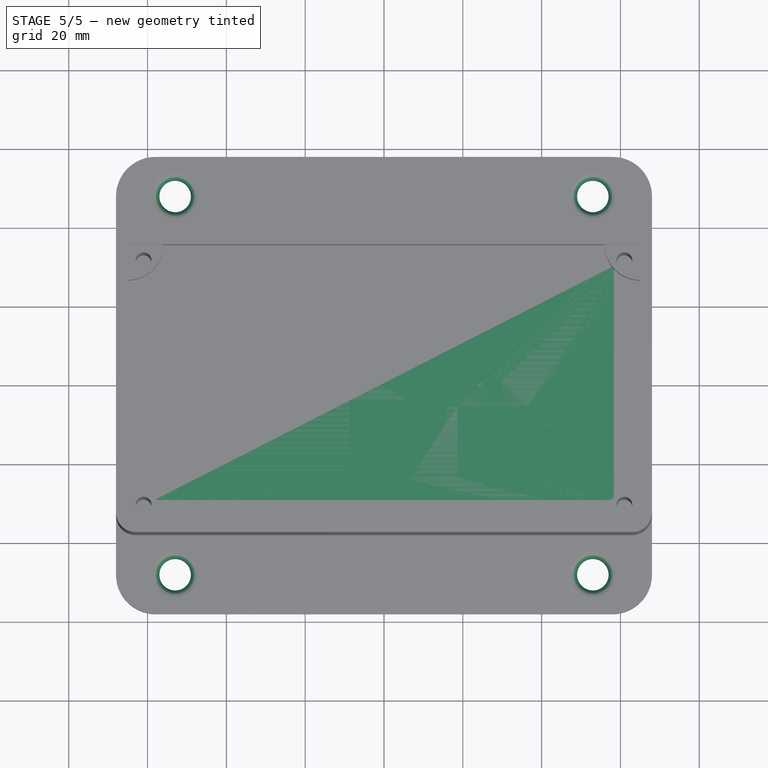
[diagram: stage 5 of 5 — top view after this stage's code; geometry added in this stage tinted green]
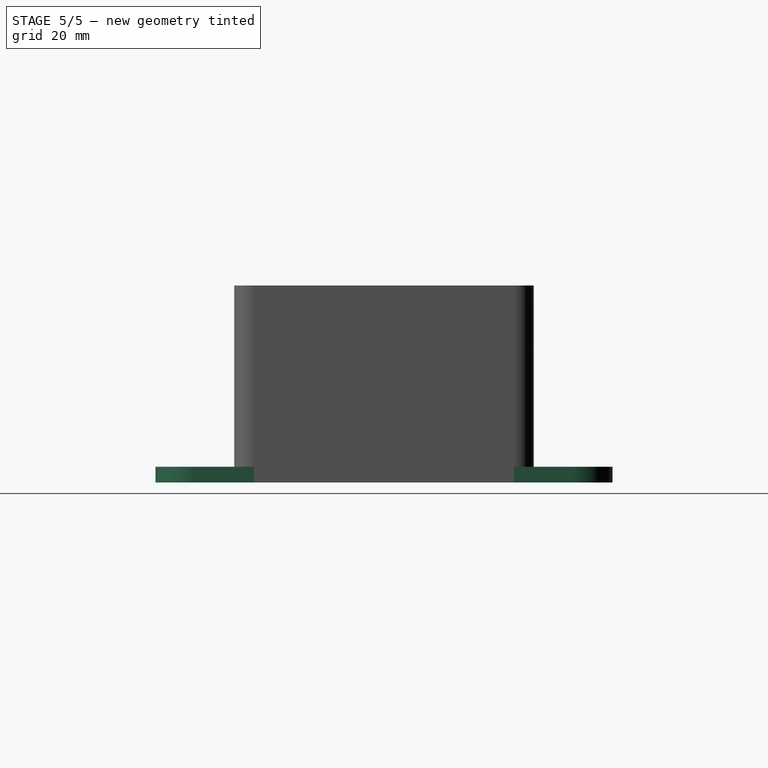
[diagram: stage 5 of 5 — right view after this stage's code; geometry added in this stage tinted green]
FEATURE [PartDesign::Chamfer] Chamfer
  Angle = 45
  Base = -> MultiTransform001 [Edge25,Edge26,Edge28,Edge27]
  BaseFeature = -> MultiTransform001
  ChamferType = 0
  FlipDirection = false
  Size = 1
  Size2 = 1
  SupportTransform = false
FEATURE [Sketcher::SketchObject] Sketch009
  FullyConstrained = true
  MapMode = 5
  Placement = pos=(0,0,0) rot=(0.57735,0.57735,0.57735;2.0944rad)
  Support = -> [YZ_Plane003]
  sketch-geometry (4):
    g0: LineSegment StartX=-6 StartY=5.95 StartZ=0 EndX=0 EndY=5.95 EndZ=0
    g1: LineSegment StartX=-6 StartY=-5.95 StartZ=0 EndX=-2.7e-15 EndY=-5.95 EndZ=0
    g2: ArcOfCircle CenterX=-2.96985 CenterY=-1e-16 CenterZ=0 NormalX=0 NormalY=0 NormalZ=1 AngleXU=0 Radius=6.65 StartAngle=5.17534 EndAngle=7.39103
    g3: ArcOfCircle CenterX=-3.03015 CenterY=-3e-16 CenterZ=0 NormalX=0 NormalY=0 NormalZ=1 AngleXU=0 Radius=6.65 StartAngle=2.03375 EndAngle=4.24943
  constraints (13):
    c: PointOnObject(g0,g-2)
    c: Horizontal(g0)
    c: Horizontal(g1)
    c: Coincident(g2,g0)
    c: Coincident(g2,g1)
    c: Diameter(g2) = 13.3
    c: DistanceY(g1,g0) = 11.9
    c: Coincident(g3,g0)
    c: Coincident(g3,g1)
    c: Equal(g2,g3)
    c: Equal(g0,g1)
    c: DistanceX(g0,g0) = 6
    c: Symmetric(g0,g1,g-1)
FEATURE [PartDesign::Pad] Pad005
  Direction = (1,1,1)
  Length = 10
  Length2 = 100
  Placement = pos=(0,0,0) rot=(0.57735,0.57735,0.57735;2.0944rad)
  Profile = -> Sketch009
  Type = 0
FEATURE [PartDesign::Body] Body005  label="breadboard-hole"
  Group = -> [Sketch011,Pad007]
  Origin = -> Origin005
  Placement = pos=(-37,0,-1) rot=(0,0,1;0rad)
  Tip = -> Pad007
FEATURE [Part::MultiFuse] Fusion001  label="bottom-subtract"
  Shapes = -> [Body003,Body004,Body005]
FEATURE [PartDesign::Body] Body  label="border-plate"
  Group = -> [Sketch,Pad,Sketch001,Pocket,Sketch002,Pad001,MultiTransform,Mirrored,Mirrored001,Sketch007,Sketch013,Pad008,Sketch014,Pocket002,Fillet001]
  Origin = -> Origin
  Tip = -> Fillet001
FEATURE [Part::Cut] Cut  label="bottom-main"
  Base = -> Body
  Tool = -> Fusion001
FEATURE [PartDesign::Body] Body002  label="plate-lock"
  Group = -> [Sketch008,Pad004,Fillet003]
  Origin = -> Origin002
  Placement = pos=(0,0,-4) rot=(0,0,1;0rad)
  Tip = -> Fillet003
FEATURE [Part::MultiFuse] Fusion  label="bottom"
  Shapes = -> [Cut,Body002]
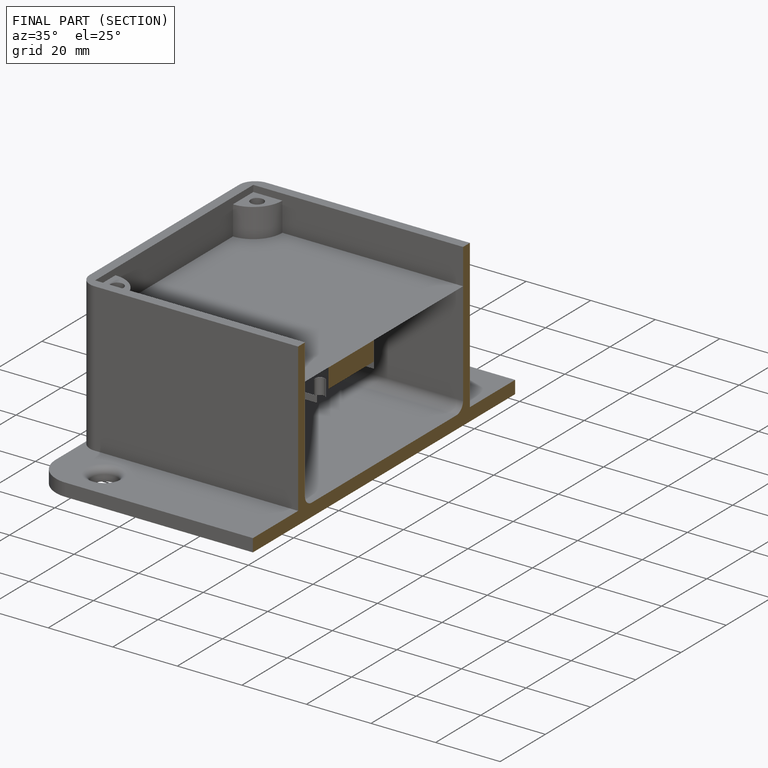
[diagram: finished part — half-section view (interior)]
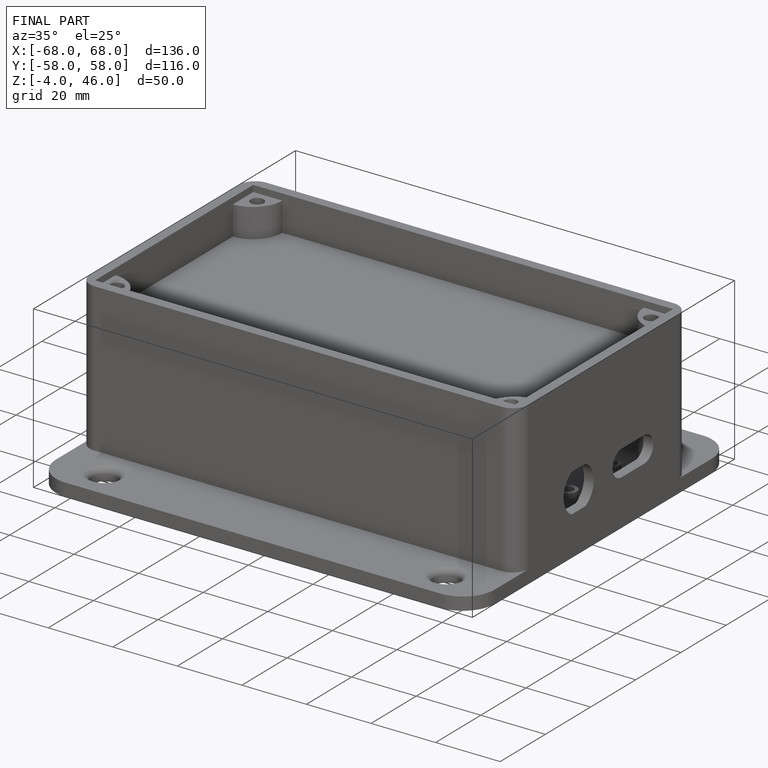
[diagram: finished part — iso view with bounding-box wireframe]
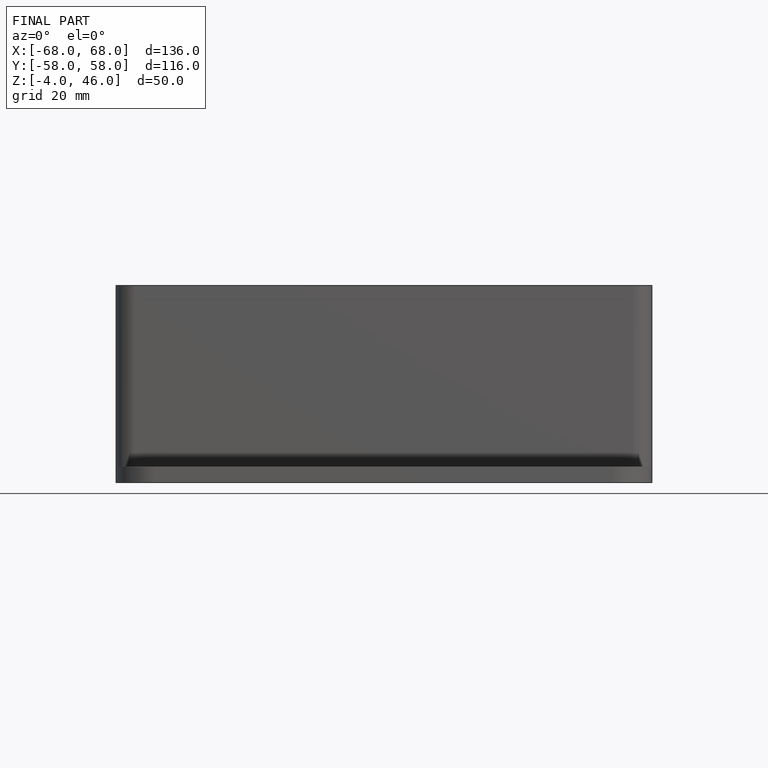
[diagram: finished part — front view with bounding-box wireframe]
